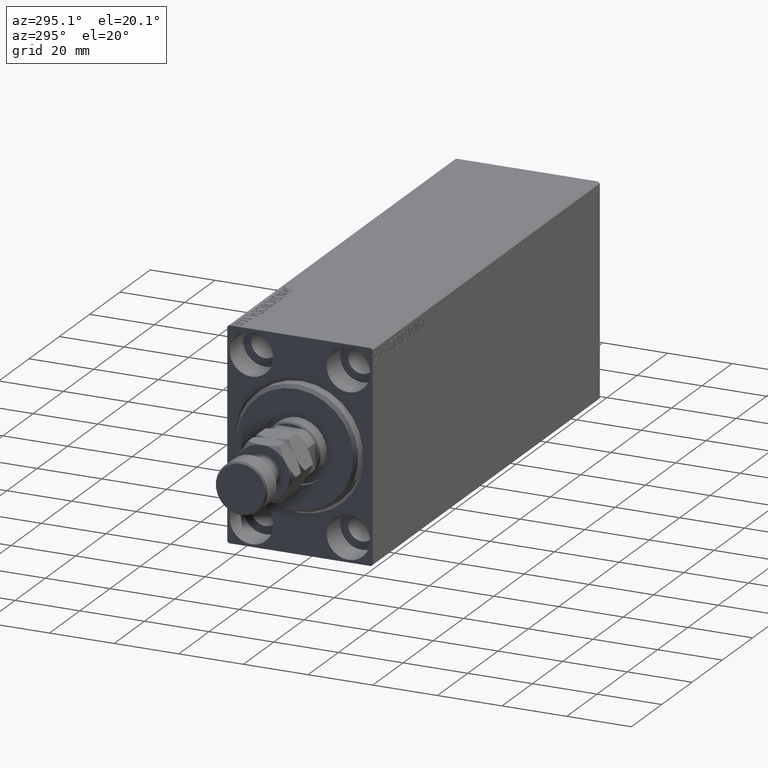
[diagram: clean part render]
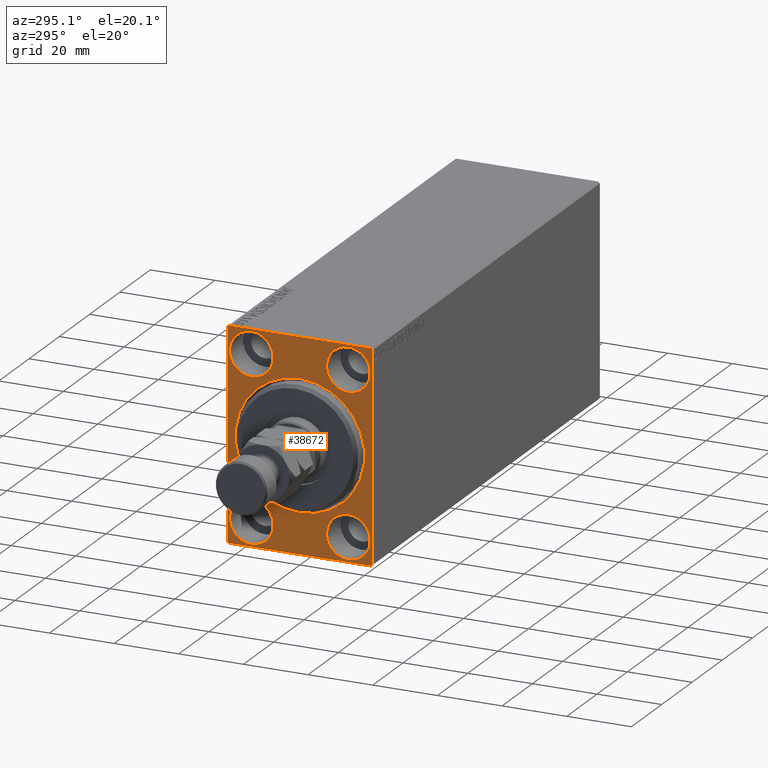
[diagram: same view with one face highlighted and labeled with its STEP entity id]
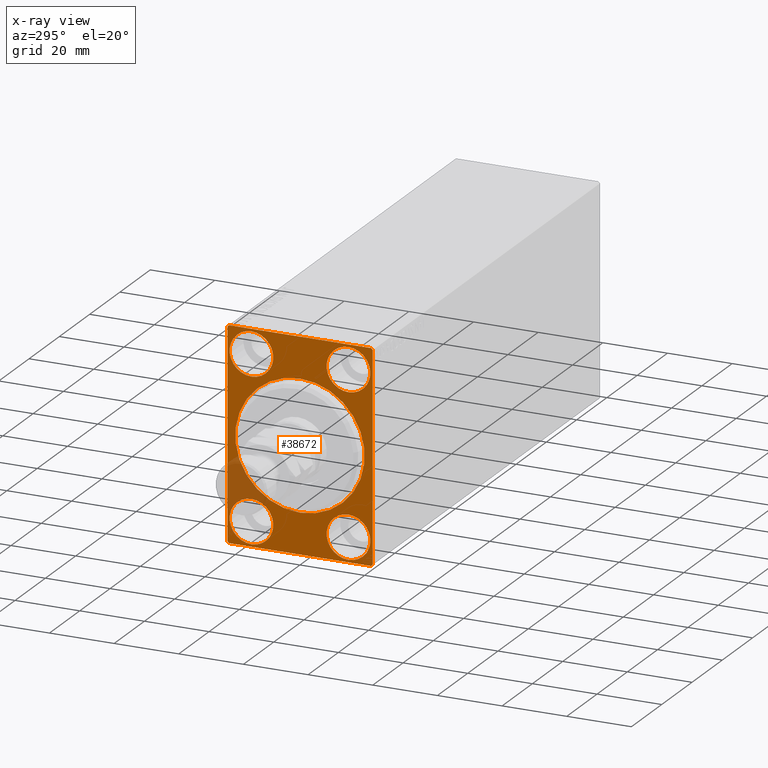
[diagram: x-ray of the same camera — body ghosted, the highlighted face saturated]
A machine part, auxiliary view. The second image highlights one B-rep face of the part: STEP entity #38672.
The next image is the same camera in x-ray: the body ghosted, the highlighted face saturated — about 9% of this face is hidden behind the body in this view.
In plain terms, the highlighted planar face has unit normal (1, 0, 0).
Its self-contained STEP definition (entity closure, byte-faithful):
#109 = ORIENTED_EDGE ( 'NONE', *, *, #16672, .F. ) ;
#219 = DIRECTION ( 'NONE',  ( 0.000000000000000000, 0.000000000000000000, 1.000000000000000000 ) ) ;
#388 = EDGE_CURVE ( 'NONE', #15750, #31864, #36460, .T. ) ;
#434 = CARTESIAN_POINT ( 'NONE',  ( 0.000000000000000000, -22.50000000000000711, -31.99999999999997868 ) ) ;
#678 = CIRCLE ( 'NONE', #36630, 6.749999999999999112 ) ;
#1085 = ORIENTED_EDGE ( 'NONE', *, *, #388, .F. ) ;
#1327 = CARTESIAN_POINT ( 'NONE',  ( 0.000000000000000000, -15.00000000000000355, -25.00000000000000000 ) ) ;
#1387 = DIRECTION ( 'NONE',  ( -1.000000000000000000, 0.000000000000000000, 0.000000000000000000 ) ) ;
#1497 = DIRECTION ( 'NONE',  ( 0.000000000000000000, 0.000000000000000000, -1.000000000000000000 ) ) ;
#1637 = VERTEX_POINT ( 'NONE', #25333 ) ;
#1722 = FACE_BOUND ( 'NONE', #30453, .T. ) ;
#2326 = VERTEX_POINT ( 'NONE', #39749 ) ;
#2530 = VERTEX_POINT ( 'NONE', #17407 ) ;
#2552 = CARTESIAN_POINT ( 'NONE',  ( 0.000000000000000000, 22.00000000000000711, 32.50000000000000000 ) ) ;
#3993 = CARTESIAN_POINT ( 'NONE',  ( 0.000000000000000000, 21.99999999999998579, -32.50000000000000711 ) ) ;
#4223 = ORIENTED_EDGE ( 'NONE', *, *, #45011, .T. ) ;
#4305 = DIRECTION ( 'NONE',  ( 0.000000000000000000, 0.000000000000000000, 1.000000000000000000 ) ) ;
#4381 = DIRECTION ( 'NONE',  ( 0.000000000000000000, 0.000000000000000000, 1.000000000000000000 ) ) ;
#4479 = VECTOR ( 'NONE', #38036, 1000.000000000000000 ) ;
#4480 = CIRCLE ( 'NONE', #37494, 19.99999999999998934 ) ;
#5063 = DIRECTION ( 'NONE',  ( 0.000000000000000000, 0.000000000000000000, -1.000000000000000000 ) ) ;
#5736 = VERTEX_POINT ( 'NONE', #37985 ) ;
#5859 = FACE_BOUND ( 'NONE', #9827, .T. ) ;
#6279 = CARTESIAN_POINT ( 'NONE',  ( 0.000000000000000000, 0.000000000000000000, 0.000000000000000000 ) ) ;
#6322 = DIRECTION ( 'NONE',  ( 0.000000000000000000, 0.000000000000000000, 1.000000000000000000 ) ) ;
#6724 = DIRECTION ( 'NONE',  ( 1.000000000000000000, 0.000000000000000000, 0.000000000000000000 ) ) ;
#6799 = DIRECTION ( 'NONE',  ( 0.000000000000000000, 0.000000000000000000, -1.000000000000000000 ) ) ;
#7231 = ORIENTED_EDGE ( 'NONE', *, *, #42635, .T. ) ;
#7675 = DIRECTION ( 'NONE',  ( 0.000000000000000000, -1.067522139062650425E-16, 1.000000000000000000 ) ) ;
#7750 = EDGE_CURVE ( 'NONE', #26743, #33965, #26784, .T. ) ;
#7909 = VERTEX_POINT ( 'NONE', #35031 ) ;
#8408 = VECTOR ( 'NONE', #6799, 1000.000000000000000 ) ;
#8449 = DIRECTION ( 'NONE',  ( -1.000000000000000000, 0.000000000000000000, 0.000000000000000000 ) ) ;
#8509 = ORIENTED_EDGE ( 'NONE', *, *, #28043, .F. ) ;
#8579 = ORIENTED_EDGE ( 'NONE', *, *, #45481, .F. ) ;
#8744 = CARTESIAN_POINT ( 'NONE',  ( 0.000000000000000000, -14.99999999999999645, 25.00000000000000000 ) ) ;
#8835 = FACE_BOUND ( 'NONE', #34134, .T. ) ;
#9028 = CARTESIAN_POINT ( 'NONE',  ( 0.000000000000000000, -15.00000000000000355, -18.25000000000000355 ) ) ;
#9608 = AXIS2_PLACEMENT_3D ( 'NONE', #13386, #27418, #19366 ) ;
#9827 = EDGE_LOOP ( 'NONE', ( #25789, #8509 ) ) ;
#9918 = DIRECTION ( 'NONE',  ( 0.000000000000000000, 0.000000000000000000, 1.000000000000000000 ) ) ;
#10085 = EDGE_CURVE ( 'NONE', #28759, #20238, #36674, .T. ) ;
#10620 = DIRECTION ( 'NONE',  ( 0.000000000000000000, 0.000000000000000000, -1.000000000000000000 ) ) ;
#10885 = CARTESIAN_POINT ( 'NONE',  ( 0.000000000000000000, 22.50000000000000000, -32.50000000000000711 ) ) ;
#12481 = CIRCLE ( 'NONE', #27202, 6.749999999999999112 ) ;
#13310 = CARTESIAN_POINT ( 'NONE',  ( 0.000000000000000000, -21.99999999999999289, -32.50000000000000711 ) ) ;
#13386 = CARTESIAN_POINT ( 'NONE',  ( 0.000000000000000000, 14.99999999999999645, -25.00000000000000000 ) ) ;
#13892 = VECTOR ( 'NONE', #7675, 1000.000000000000000 ) ;
#14776 = CIRCLE ( 'NONE', #22129, 6.749999999999999112 ) ;
#14893 = AXIS2_PLACEMENT_3D ( 'NONE', #1327, #8449, #15784 ) ;
#15019 = ORIENTED_EDGE ( 'NONE', *, *, #26858, .F. ) ;
#15180 = DIRECTION ( 'NONE',  ( 0.000000000000000000, 0.000000000000000000, 1.000000000000000000 ) ) ;
#15724 = CARTESIAN_POINT ( 'NONE',  ( 0.000000000000000000, 0.000000000000000000, 0.000000000000000000 ) ) ;
#15750 = VERTEX_POINT ( 'NONE', #44585 ) ;
#15784 = DIRECTION ( 'NONE',  ( 0.000000000000000000, 0.000000000000000000, 1.000000000000000000 ) ) ;
#16114 = ORIENTED_EDGE ( 'NONE', *, *, #10085, .F. ) ;
#16348 = DIRECTION ( 'NONE',  ( 0.000000000000000000, -0.7071067811865474617, -0.7071067811865474617 ) ) ;
#16384 = AXIS2_PLACEMENT_3D ( 'NONE', #17327, #20781, #6322 ) ;
#16590 = CARTESIAN_POINT ( 'NONE',  ( 0.000000000000000000, -15.00000000000000355, -25.00000000000000000 ) ) ;
#16672 = EDGE_CURVE ( 'NONE', #20238, #28759, #12481, .T. ) ;
#16780 = VECTOR ( 'NONE', #44693, 999.9999999999998863 ) ;
#17327 = CARTESIAN_POINT ( 'NONE',  ( 0.000000000000000000, 14.99999999999999645, -25.00000000000000000 ) ) ;
#17407 = CARTESIAN_POINT ( 'NONE',  ( 0.000000000000000000, -14.99999999999999645, 31.75000000000000000 ) ) ;
#17486 = EDGE_CURVE ( 'NONE', #1637, #27694, #38964, .T. ) ;
#17500 = VERTEX_POINT ( 'NONE', #9028 ) ;
#17900 = DIRECTION ( 'NONE',  ( -1.000000000000000000, 0.000000000000000000, 0.000000000000000000 ) ) ;
#18390 = EDGE_CURVE ( 'NONE', #20603, #31864, #36511, .T. ) ;
#18755 = VECTOR ( 'NONE', #39683, 1000.000000000000000 ) ;
#18905 = EDGE_CURVE ( 'NONE', #26743, #33359, #41274, .T. ) ;
#19085 = DIRECTION ( 'NONE',  ( -1.000000000000000000, 0.000000000000000000, 0.000000000000000000 ) ) ;
#19203 = CARTESIAN_POINT ( 'NONE',  ( 0.000000000000000000, 22.49999999999999289, 32.50000000000000000 ) ) ;
#19366 = DIRECTION ( 'NONE',  ( 0.000000000000000000, 0.000000000000000000, 1.000000000000000000 ) ) ;
#19515 = VECTOR ( 'NONE', #16348, 1000.000000000000114 ) ;
#19821 = CARTESIAN_POINT ( 'NONE',  ( 0.000000000000000000, 2.449293598294705330E-15, -19.99999999999998934 ) ) ;
#19867 = FACE_BOUND ( 'NONE', #19888, .T. ) ;
#19872 = VECTOR ( 'NONE', #25452, 999.9999999999998863 ) ;
#19888 = EDGE_LOOP ( 'NONE', ( #8579, #26113 ) ) ;
#20238 = VERTEX_POINT ( 'NONE', #23016 ) ;
#20345 = CARTESIAN_POINT ( 'NONE',  ( 0.000000000000000000, -22.50000000000000711, -32.50000000000000711 ) ) ;
#20603 = VERTEX_POINT ( 'NONE', #45467 ) ;
#20781 = DIRECTION ( 'NONE',  ( -1.000000000000000000, 0.000000000000000000, 0.000000000000000000 ) ) ;
#21117 = AXIS2_PLACEMENT_3D ( 'NONE', #28445, #39016, #4305 ) ;
#21989 = VERTEX_POINT ( 'NONE', #19821 ) ;
#22129 = AXIS2_PLACEMENT_3D ( 'NONE', #8744, #19085, #15180 ) ;
#22151 = ORIENTED_EDGE ( 'NONE', *, *, #22233, .T. ) ;
#22233 = EDGE_CURVE ( 'NONE', #21989, #7909, #38368, .T. ) ;
#22309 = CARTESIAN_POINT ( 'NONE',  ( 0.000000000000000000, 0.000000000000000000, 0.000000000000000000 ) ) ;
#22632 = DIRECTION ( 'NONE',  ( 1.000000000000000000, 0.000000000000000000, 0.000000000000000000 ) ) ;
#22796 = LINE ( 'NONE', #43493, #19515 ) ;
#23016 = CARTESIAN_POINT ( 'NONE',  ( 0.000000000000000000, 15.00000000000000355, 18.25000000000000355 ) ) ;
#24129 = ORIENTED_EDGE ( 'NONE', *, *, #7750, .T. ) ;
#25161 = AXIS2_PLACEMENT_3D ( 'NONE', #22309, #44136, #5063 ) ;
#25333 = CARTESIAN_POINT ( 'NONE',  ( 0.000000000000000000, 14.99999999999999645, -18.25000000000000355 ) ) ;
#25452 = DIRECTION ( 'NONE',  ( -0.000000000000000000, 0.7071067811865525687, -0.7071067811865425767 ) ) ;
#25789 = ORIENTED_EDGE ( 'NONE', *, *, #17486, .F. ) ;
#26113 = ORIENTED_EDGE ( 'NONE', *, *, #37444, .F. ) ;
#26184 = ORIENTED_EDGE ( 'NONE', *, *, #35772, .T. ) ;
#26496 = DIRECTION ( 'NONE',  ( -1.000000000000000000, 0.000000000000000000, 0.000000000000000000 ) ) ;
#26743 = VERTEX_POINT ( 'NONE', #13310 ) ;
#26784 = LINE ( 'NONE', #44013, #16780 ) ;
#26858 = EDGE_CURVE ( 'NONE', #17500, #28884, #43627, .T. ) ;
#27047 = CARTESIAN_POINT ( 'NONE',  ( 0.000000000000000000, -21.99999999999999289, 32.49999999999999289 ) ) ;
#27202 = AXIS2_PLACEMENT_3D ( 'NONE', #38816, #17900, #219 ) ;
#27418 = DIRECTION ( 'NONE',  ( -1.000000000000000000, 0.000000000000000000, 0.000000000000000000 ) ) ;
#27694 = VERTEX_POINT ( 'NONE', #41990 ) ;
#27720 = CIRCLE ( 'NONE', #21117, 6.749999999999999112 ) ;
#28043 = EDGE_CURVE ( 'NONE', #27694, #1637, #34760, .T. ) ;
#28445 = CARTESIAN_POINT ( 'NONE',  ( 0.000000000000000000, -14.99999999999999645, 25.00000000000000000 ) ) ;
#28713 = CARTESIAN_POINT ( 'NONE',  ( 0.000000000000000000, -22.50000000000000711, 31.99999999999999289 ) ) ;
#28759 = VERTEX_POINT ( 'NONE', #36865 ) ;
#28884 = VERTEX_POINT ( 'NONE', #32677 ) ;
#30170 = VECTOR ( 'NONE', #36291, 1000.000000000000114 ) ;
#30208 = FACE_OUTER_BOUND ( 'NONE', #37968, .T. ) ;
#30238 = EDGE_LOOP ( 'NONE', ( #4223, #22151 ) ) ;
#30453 = EDGE_LOOP ( 'NONE', ( #16114, #109 ) ) ;
#30712 = LINE ( 'NONE', #37845, #8408 ) ;
#31521 = AXIS2_PLACEMENT_3D ( 'NONE', #32642, #1387, #4381 ) ;
#31864 = VERTEX_POINT ( 'NONE', #27047 ) ;
#32081 = EDGE_CURVE ( 'NONE', #20603, #33965, #30712, .T. ) ;
#32286 = CARTESIAN_POINT ( 'NONE',  ( 0.000000000000000000, -14.99999999999999645, 18.25000000000000355 ) ) ;
#32642 = CARTESIAN_POINT ( 'NONE',  ( 0.000000000000000000, 15.00000000000000355, 25.00000000000000000 ) ) ;
#32677 = CARTESIAN_POINT ( 'NONE',  ( 0.000000000000000000, -15.00000000000000355, -31.75000000000000000 ) ) ;
#32984 = PLANE ( 'NONE',  #45395 ) ;
#33359 = VERTEX_POINT ( 'NONE', #3993 ) ;
#33851 = ORIENTED_EDGE ( 'NONE', *, *, #40532, .F. ) ;
#33965 = VERTEX_POINT ( 'NONE', #434 ) ;
#34119 = VERTEX_POINT ( 'NONE', #32286 ) ;
#34134 = EDGE_LOOP ( 'NONE', ( #15019, #44168 ) ) ;
#34760 = CIRCLE ( 'NONE', #16384, 6.749999999999999112 ) ;
#35031 = CARTESIAN_POINT ( 'NONE',  ( 0.000000000000000000, 0.000000000000000000, 19.99999999999998934 ) ) ;
#35772 = EDGE_CURVE ( 'NONE', #2326, #33359, #22796, .T. ) ;
#36291 = DIRECTION ( 'NONE',  ( -0.000000000000000000, 0.7071067811865474617, 0.7071067811865474617 ) ) ;
#36460 = LINE ( 'NONE', #19203, #18755 ) ;
#36511 = LINE ( 'NONE', #28713, #30170 ) ;
#36630 = AXIS2_PLACEMENT_3D ( 'NONE', #16590, #26496, #9918 ) ;
#36674 = CIRCLE ( 'NONE', #31521, 6.749999999999999112 ) ;
#36865 = CARTESIAN_POINT ( 'NONE',  ( 0.000000000000000000, 15.00000000000000355, 31.75000000000000000 ) ) ;
#37177 = ORIENTED_EDGE ( 'NONE', *, *, #32081, .F. ) ;
#37423 = ORIENTED_EDGE ( 'NONE', *, *, #18390, .T. ) ;
#37444 = EDGE_CURVE ( 'NONE', #34119, #2530, #27720, .T. ) ;
#37490 = LINE ( 'NONE', #2552, #19872 ) ;
#37494 = AXIS2_PLACEMENT_3D ( 'NONE', #6279, #6724, #10620 ) ;
#37845 = CARTESIAN_POINT ( 'NONE',  ( 0.000000000000000000, -22.50000000000000711, 32.49999999999999289 ) ) ;
#37968 = EDGE_LOOP ( 'NONE', ( #37177, #37423, #1085, #7231, #33851, #26184, #41077, #24129 ) ) ;
#37985 = CARTESIAN_POINT ( 'NONE',  ( 0.000000000000000000, 22.49999999999999289, 32.00000000000002132 ) ) ;
#38036 = DIRECTION ( 'NONE',  ( 0.000000000000000000, 1.000000000000000000, 0.000000000000000000 ) ) ;
#38368 = CIRCLE ( 'NONE', #25161, 19.99999999999998934 ) ;
#38672 = ADVANCED_FACE ( 'NONE', ( #40101, #5859, #19867, #1722, #8835, #30208 ), #32984, .F. ) ;
#38816 = CARTESIAN_POINT ( 'NONE',  ( 0.000000000000000000, 15.00000000000000355, 25.00000000000000000 ) ) ;
#38964 = CIRCLE ( 'NONE', #9608, 6.749999999999999112 ) ;
#39016 = DIRECTION ( 'NONE',  ( -1.000000000000000000, 0.000000000000000000, 0.000000000000000000 ) ) ;
#39677 = EDGE_CURVE ( 'NONE', #28884, #17500, #678, .T. ) ;
#39683 = DIRECTION ( 'NONE',  ( 0.000000000000000000, -1.000000000000000000, -1.541976423090495387E-16 ) ) ;
#39749 = CARTESIAN_POINT ( 'NONE',  ( 0.000000000000000000, 22.50000000000000000, -32.00000000000000711 ) ) ;
#40101 = FACE_BOUND ( 'NONE', #30238, .T. ) ;
#40532 = EDGE_CURVE ( 'NONE', #2326, #5736, #42384, .T. ) ;
#41077 = ORIENTED_EDGE ( 'NONE', *, *, #18905, .F. ) ;
#41274 = LINE ( 'NONE', #20345, #4479 ) ;
#41990 = CARTESIAN_POINT ( 'NONE',  ( 0.000000000000000000, 14.99999999999999645, -31.75000000000000000 ) ) ;
#42384 = LINE ( 'NONE', #10885, #13892 ) ;
#42635 = EDGE_CURVE ( 'NONE', #15750, #5736, #37490, .T. ) ;
#43493 = CARTESIAN_POINT ( 'NONE',  ( 0.000000000000000000, 22.50000000000000000, -32.00000000000000711 ) ) ;
#43627 = CIRCLE ( 'NONE', #14893, 6.749999999999999112 ) ;
#44013 = CARTESIAN_POINT ( 'NONE',  ( 0.000000000000000000, -21.99999999999999289, -32.50000000000000711 ) ) ;
#44136 = DIRECTION ( 'NONE',  ( 1.000000000000000000, 0.000000000000000000, 0.000000000000000000 ) ) ;
#44168 = ORIENTED_EDGE ( 'NONE', *, *, #39677, .F. ) ;
#44585 = CARTESIAN_POINT ( 'NONE',  ( 0.000000000000000000, 22.00000000000000711, 32.50000000000000000 ) ) ;
#44693 = DIRECTION ( 'NONE',  ( -0.000000000000000000, -0.7071067811865376918, 0.7071067811865574537 ) ) ;
#45011 = EDGE_CURVE ( 'NONE', #7909, #21989, #4480, .T. ) ;
#45395 = AXIS2_PLACEMENT_3D ( 'NONE', #15724, #22632, #1497 ) ;
#45467 = CARTESIAN_POINT ( 'NONE',  ( 0.000000000000000000, -22.50000000000000711, 31.99999999999999289 ) ) ;
#45481 = EDGE_CURVE ( 'NONE', #2530, #34119, #14776, .T. ) ;